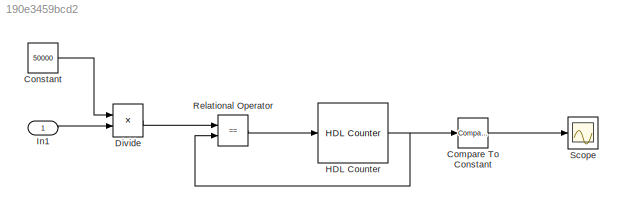
MODEL slx_190e3459bcd2
KIND model
BLOCK [Reference] Compare To Constant  REF=simulink/Logic and Bit
Operations/Compare
To Constant
  OutDataTypeStr = boolean
  Ports = [1, 1]
  SourceBlock = simulink/Logic and Bit\nOperations/Compare\nTo Constant
  SourceType = Compare To Constant
  ZeroCross = on
  const = 0
  relop = ==
BLOCK [Constant] Constant
  OutDataTypeStr = int32
  Value = 50000
BLOCK [Product] Divide
  InputSameDT = off
  Inputs = */
  OutDataTypeStr = int32
  Ports = [2, 1]
BLOCK [Reference] HDL Counter  REF=hdlsllib/HDL Operations/HDL Counter
  CountDataType = Unsigned
  CountDirPort = off
  CountEnbPort = off
  CountFracLen = 0
  CountFrom = 0
  CountFromType = Initial value
  CountInit = 0
  CountLoadPort = off
  CountMax = 100
  CountResetPort = on
  CountSampTime = 1
  CountStep = 1
  CountType = Free running
  CountWordLen = 32
  Ports = [1, 1]
  SourceBlock = hdlsllib/HDL Operations/HDL Counter
  SourceType = HDL Counter
BLOCK [Inport] In1
  IconDisplay = Port number
BLOCK [RelationalOperator] Relational Operator
  InputSameDT = off
  Operator = ==
  OutDataTypeStr = boolean
  Ports = [2, 1]
BLOCK [Scope] Scope
  Floating = off
  LimitDataPoints = off
  NumInputPorts = 1
  Ports = [1]
  ShowLegends = off
  ZoomMode = xonly
LINE Compare To Constant:1 -> Scope:1
LINE Constant:1 -> Divide:1
LINE Divide:1 -> Relational Operator:1
NET HDL Counter:1 -> Compare To Constant:1, Relational Operator:2
LINE In1:1 -> Divide:2
LINE Relational Operator:1 -> HDL Counter:1
note: NET lines group one-source signal fan-out (src -> all destinations, sorted); 1:1 wires keep LINE
